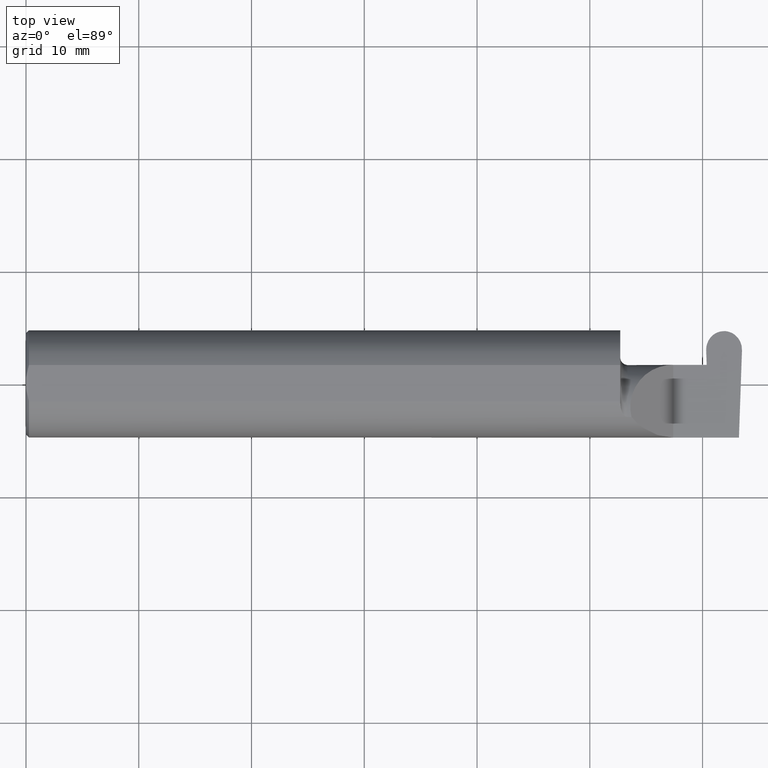
[diagram: clean part render]
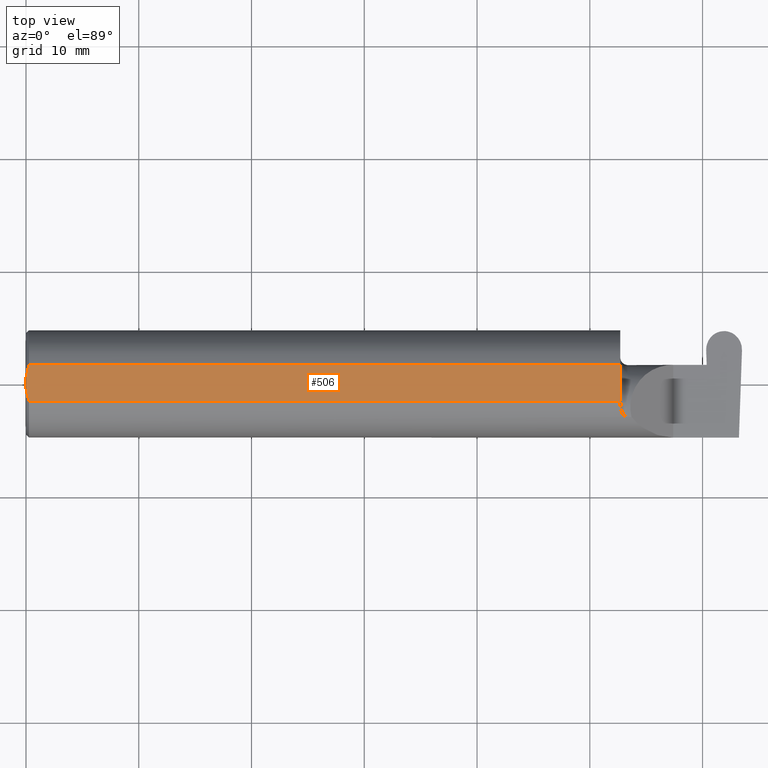
[diagram: same view with one face highlighted and labeled with its STEP entity id]
A machine part, top view. The second image highlights one B-rep face of the part: STEP entity #506.
In plain terms, the highlighted planar face has unit normal (0, 0, 1).
Its self-contained STEP definition (entity closure, byte-faithful):
#4 = CARTESIAN_POINT ( 'NONE',  ( 0.009999999999999346217, 0.06325108694718235836, 0.1763499999999999235 ) ) ;
#11 = CARTESIAN_POINT ( 'NONE',  ( 0.000000000000000000, 0.01880691362239451242, 0.1763499999999999235 ) ) ;
#15 = LINE ( 'NONE', #433, #77 ) ;
#31 = LINE ( 'NONE', #303, #620 ) ;
#64 = VERTEX_POINT ( 'NONE', #11 ) ;
#69 = FACE_OUTER_BOUND ( 'NONE', #318, .T. ) ;
#77 = VECTOR ( 'NONE', #213, 39.37007874015748143 ) ;
#86 = EDGE_CURVE ( 'NONE', #106, #491, #15, .T. ) ;
#88 = CARTESIAN_POINT ( 'NONE',  ( 0.000000000000000000, -0.01880691362239451242, 0.1763499999999999235 ) ) ;
#95 = VERTEX_POINT ( 'NONE', #278 ) ;
#106 = VERTEX_POINT ( 'NONE', #171 ) ;
#125 = ORIENTED_EDGE ( 'NONE', *, *, #570, .F. ) ;
#140 = DIRECTION ( 'NONE',  ( -3.417954624266474541E-16, 1.000000000000000000, 0.000000000000000000 ) ) ;
#171 = CARTESIAN_POINT ( 'NONE',  ( 2.075000000000000178, 0.06325108694718235836, 0.1763499999999999235 ) ) ;
#173 = CARTESIAN_POINT ( 'NONE',  ( 0.009999999999999346217, 0.06325108694718235836, 0.1763499999999999235 ) ) ;
#185 = EDGE_CURVE ( 'NONE', #287, #517, #336, .T. ) ;
#189 = CARTESIAN_POINT ( 'NONE',  ( 0.009999999999999346217, -0.06325108694718235836, 0.1763499999999999235 ) ) ;
#194 = CARTESIAN_POINT ( 'NONE',  ( 0.001595548104417217512, -0.03385300050298979679, 0.1763499999999999235 ) ) ;
#213 = DIRECTION ( 'NONE',  ( -1.000000000000000000, -0.000000000000000000, -0.000000000000000000 ) ) ;
#222 = CARTESIAN_POINT ( 'NONE',  ( 2.876828993045917215, 0.1873499999999998500, 0.1763499999999999235 ) ) ;
#226 = CARTESIAN_POINT ( 'NONE',  ( 0.000000000000000000, -0.01880691362239451242, 0.1763499999999999235 ) ) ;
#230 = LINE ( 'NONE', #432, #351 ) ;
#252 = EDGE_CURVE ( 'NONE', #287, #95, #401, .T. ) ;
#278 = CARTESIAN_POINT ( 'NONE',  ( 2.075000000000000178, -0.06325108694718283020, 0.1763499999999999235 ) ) ;
#287 = VERTEX_POINT ( 'NONE', #189 ) ;
#303 = CARTESIAN_POINT ( 'NONE',  ( 2.075000000000000178, 0.1873499999999995724, 0.1763499999999999235 ) ) ;
#318 = EDGE_LOOP ( 'NONE', ( #588, #343, #648, #125, #377, #574 ) ) ;
#325 = CARTESIAN_POINT ( 'NONE',  ( 0.001616639753276218755, 0.03405189565400963680, 0.1763499999999999235 ) ) ;
#330 = CARTESIAN_POINT ( 'NONE',  ( 0.000000000000000000, 0.01880691362239451242, 0.1763499999999999235 ) ) ;
#336 = B_SPLINE_CURVE_WITH_KNOTS ( 'NONE', 3,
 ( #459, #689, #194, #88 ),
 .UNSPECIFIED., .F., .F.,
 ( 4, 4 ),
 ( 0.009771445421851449736, 0.01092787937989102981 ),
 .UNSPECIFIED. ) ;
#337 = DIRECTION ( 'NONE',  ( -0.000000000000000000, 1.000000000000000000, -0.000000000000000000 ) ) ;
#343 = ORIENTED_EDGE ( 'NONE', *, *, #629, .T. ) ;
#351 = VECTOR ( 'NONE', #337, 39.37007874015748143 ) ;
#377 = ORIENTED_EDGE ( 'NONE', *, *, #556, .F. ) ;
#401 = LINE ( 'NONE', #514, #670 ) ;
#432 = CARTESIAN_POINT ( 'NONE',  ( 0.000000000000000000, 0.1873499999999998500, 0.1763499999999999235 ) ) ;
#433 = CARTESIAN_POINT ( 'NONE',  ( 0.000000000000000000, 0.06325108694718235836, 0.1763499999999999235 ) ) ;
#440 = PLANE ( 'NONE',  #672 ) ;
#459 = CARTESIAN_POINT ( 'NONE',  ( 0.009999999999999346217, -0.06325108694718235836, 0.1763499999999999235 ) ) ;
#491 = VERTEX_POINT ( 'NONE', #4 ) ;
#506 = ADVANCED_FACE ( 'NONE', ( #69 ), #440, .T. ) ;
#514 = CARTESIAN_POINT ( 'NONE',  ( 0.000000000000000000, -0.06325108694718235836, 0.1763499999999999235 ) ) ;
#517 = VERTEX_POINT ( 'NONE', #226 ) ;
#519 = B_SPLINE_CURVE_WITH_KNOTS ( 'NONE', 3,
 ( #330, #325, #536, #173 ),
 .UNSPECIFIED., .F., .F.,
 ( 4, 4 ),
 ( 0.01188664626022267051, 0.01304646959483758001 ),
 .UNSPECIFIED. ) ;
#536 = CARTESIAN_POINT ( 'NONE',  ( 0.005155213631852355663, 0.04890080824240217866, 0.1763499999999999235 ) ) ;
#556 = EDGE_CURVE ( 'NONE', #517, #64, #230, .T. ) ;
#570 = EDGE_CURVE ( 'NONE', #64, #491, #519, .T. ) ;
#574 = ORIENTED_EDGE ( 'NONE', *, *, #185, .F. ) ;
#588 = ORIENTED_EDGE ( 'NONE', *, *, #252, .T. ) ;
#598 = DIRECTION ( 'NONE',  ( 0.000000000000000000, 0.000000000000000000, 1.000000000000000000 ) ) ;
#616 = DIRECTION ( 'NONE',  ( 1.000000000000000000, 0.000000000000000000, 0.000000000000000000 ) ) ;
#620 = VECTOR ( 'NONE', #140, 39.37007874015748143 ) ;
#629 = EDGE_CURVE ( 'NONE', #95, #106, #31, .T. ) ;
#648 = ORIENTED_EDGE ( 'NONE', *, *, #86, .T. ) ;
#665 = DIRECTION ( 'NONE',  ( 1.000000000000000000, 0.000000000000000000, -0.000000000000000000 ) ) ;
#670 = VECTOR ( 'NONE', #616, 39.37007874015748143 ) ;
#672 = AXIS2_PLACEMENT_3D ( 'NONE', #222, #598, #665 ) ;
#689 = CARTESIAN_POINT ( 'NONE',  ( 0.005151108632379595466, -0.04888864921576189376, 0.1763499999999999235 ) ) ;